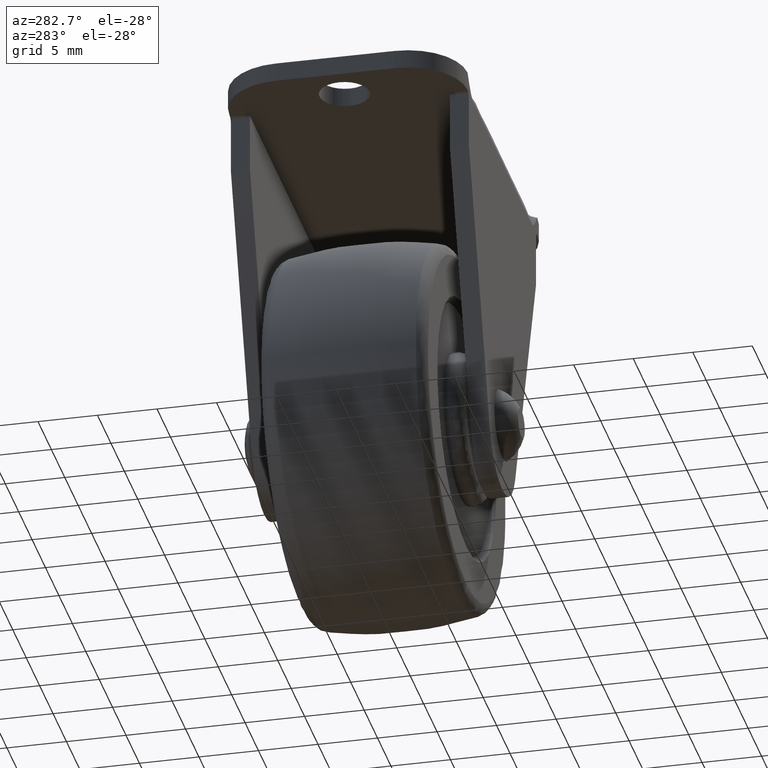
[diagram: clean part render]
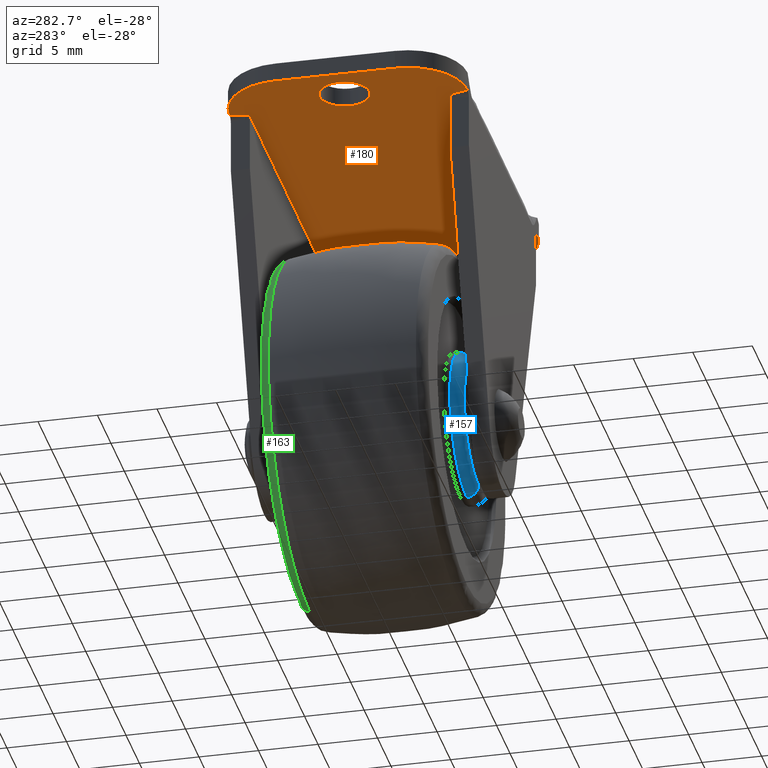
[diagram: same view with three faces highlighted in distinct colors, each labeled with its STEP entity id]
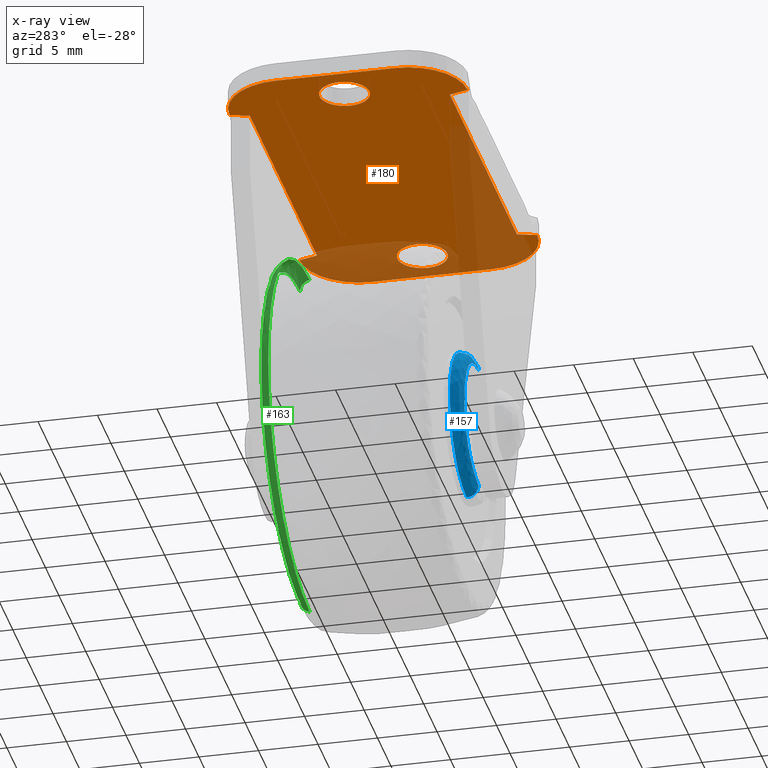
[diagram: x-ray of the same camera — body ghosted, the three highlighted faces saturated]
A machine part, auxiliary view with three faces highlighted in distinct colors.
The next image is the same camera in x-ray (body ghosted, the three faces saturated) — at least one of them is partly hidden behind the body in this view.
Their STEP definitions:

[orange] entity #180 — the highlighted planar face has unit normal (0, 0, -1).
#180=ADVANCED_FACE('',(#552,#553,#554),#551,.T.);
#551=PLANE('',#1491);
#552=FACE_OUTER_BOUND('',#1492,.T.);
#553=FACE_BOUND('',#1493,.T.);
#554=FACE_BOUND('',#1494,.T.);
#1488=CARTESIAN_POINT('',(-2.16000000000E+01,1.20000005665E+01,2.44000010000E+01));
#1489=DIRECTION('',(0.00000000000E+00,0.00000000000E+00,-1.00000000000E+00));
#1490=DIRECTION('',(1.00000000000E+00,0.00000000000E+00,0.00000000000E+00));
#1491=AXIS2_PLACEMENT_3D('',#1488,#1489,#1490);
#1492=EDGE_LOOP('',(#2107,#2108,#2109,#2110,#2111,#2112,#2113,#2114,#2115,#2116,#2117,#2118));
#1493=EDGE_LOOP('',(#2119,#2120));
#1494=EDGE_LOOP('',(#2121,#2122));
#2107=ORIENTED_EDGE('',*,*,#2436,.T.);
#2108=ORIENTED_EDGE('',*,*,#2437,.T.);
#2109=ORIENTED_EDGE('',*,*,#2438,.F.);
#2110=ORIENTED_EDGE('',*,*,#2439,.F.);
#2111=ORIENTED_EDGE('',*,*,#2440,.F.);
#2112=ORIENTED_EDGE('',*,*,#2441,.T.);
#2113=ORIENTED_EDGE('',*,*,#2442,.T.);
#2114=ORIENTED_EDGE('',*,*,#2443,.T.);
#2115=ORIENTED_EDGE('',*,*,#2444,.F.);
#2116=ORIENTED_EDGE('',*,*,#2434,.F.);
#2117=ORIENTED_EDGE('',*,*,#2431,.F.);
#2118=ORIENTED_EDGE('',*,*,#2445,.T.);
#2119=ORIENTED_EDGE('',*,*,#2446,.T.);
#2120=ORIENTED_EDGE('',*,*,#2447,.T.);
#2121=ORIENTED_EDGE('',*,*,#2448,.T.);
#2122=ORIENTED_EDGE('',*,*,#2449,.T.);
#2431=EDGE_CURVE('',#2979,#2986,#2987,.T.);
#2434=EDGE_CURVE('',#2986,#3006,#3007,.T.);
#2436=EDGE_CURVE('',#3019,#3020,#3021,.T.);
#2437=EDGE_CURVE('',#3020,#3027,#3028,.T.);
#2438=EDGE_CURVE('',#3034,#3027,#3035,.T.);
#2439=EDGE_CURVE('',#3041,#3034,#3042,.T.);
#2440=EDGE_CURVE('',#3048,#3041,#3049,.T.);
#2441=EDGE_CURVE('',#3048,#3055,#3056,.T.);
#2442=EDGE_CURVE('',#3055,#3062,#3063,.T.);
#2443=EDGE_CURVE('',#3062,#3069,#3070,.T.);
#2444=EDGE_CURVE('',#3006,#3069,#3076,.T.);
#2445=EDGE_CURVE('',#2979,#3019,#3082,.T.);
#2446=EDGE_CURVE('',#3088,#3089,#3090,.T.);
#2447=EDGE_CURVE('',#3089,#3088,#3096,.T.);
#2448=EDGE_CURVE('',#3102,#3103,#3104,.T.);
#2449=EDGE_CURVE('',#3103,#3102,#3110,.T.);
#2979=VERTEX_POINT('',#4091);
#2986=VERTEX_POINT('',#4095);
#2987=CIRCLE('',#4099,5.00000000000E+00);
#3006=VERTEX_POINT('',#4107);
#3007=LINE('',#4108,#4109);
#3019=VERTEX_POINT('',#4114);
#3020=VERTEX_POINT('',#4115);
#3021=LINE('',#4116,#4117);
#3027=VERTEX_POINT('',#4119);
#3028=LINE('',#4120,#4121);
#3034=VERTEX_POINT('',#4123);
#3035=CIRCLE('',#4127,5.00000000000E+00);
#3041=VERTEX_POINT('',#4128);
#3042=LINE('',#4129,#4130);
#3048=VERTEX_POINT('',#4132);
#3049=CIRCLE('',#4136,5.00000000000E+00);
#3055=VERTEX_POINT('',#4137);
#3056=LINE('',#4138,#4139);
#3062=VERTEX_POINT('',#4141);
#3063=LINE('',#4142,#4143);
#3069=VERTEX_POINT('',#4145);
#3070=LINE('',#4146,#4147);
#3076=CIRCLE('',#4152,5.00000000000E+00);
#3082=LINE('',#4153,#4154);
#3088=VERTEX_POINT('',#4156);
#3089=VERTEX_POINT('',#4157);
#3090=CIRCLE('',#4161,2.10000000000E+00);
#3096=CIRCLE('',#4165,2.10000000000E+00);
#3102=VERTEX_POINT('',#4166);
#3103=VERTEX_POINT('',#4167);
#3104=CIRCLE('',#4171,2.10000000000E+00);
#3110=CIRCLE('',#4175,2.10000000000E+00);
#4091=CARTESIAN_POINT('',(-1.30000000000E+01,1.00000000000E+01,2.44000010000E+01));
#4095=CARTESIAN_POINT('',(-1.80000000000E+01,5.00000000000E+00,2.44000010000E+01));
#4096=CARTESIAN_POINT('',(-1.30000000000E+01,5.00000000000E+00,2.44000010000E+01));
#4097=DIRECTION('',(0.00000000000E+00,-0.00000000000E+00,1.00000000000E+00));
#4098=DIRECTION('',(1.00000000000E+00,-0.00000000000E+00,-0.00000000000E+00));
#4099=AXIS2_PLACEMENT_3D('',#4096,#4097,#4098);
#4107=CARTESIAN_POINT('',(-1.80000000000E+01,-5.00000000000E+00,2.44000010000E+01));
#4108=CARTESIAN_POINT('',(-1.80000000000E+01,5.00000000000E+00,2.44000010000E+01));
#4109=VECTOR('',#4110,1.00000000000E+01);
#4110=DIRECTION('',(0.00000000000E+00,-1.00000000000E+00,0.00000000000E+00));
#4114=CARTESIAN_POINT('',(-1.25000000000E+01,8.40000000000E+00,2.44000010000E+01));
#4115=CARTESIAN_POINT('',(1.25000000000E+01,8.40000000000E+00,2.44000010000E+01));
#4116=CARTESIAN_POINT('',(-1.25000000000E+01,8.40000000000E+00,2.44000010000E+01));
#4117=VECTOR('',#4118,2.50000000000E+01);
#4118=DIRECTION('',(1.00000000000E+00,0.00000000000E+00,0.00000000000E+00));
#4119=CARTESIAN_POINT('',(1.30000015708E+01,1.00000000000E+01,2.44000010000E+01));
#4120=CARTESIAN_POINT('',(1.25000000000E+01,8.40000000000E+00,2.44000010000E+01));
#4121=VECTOR('',#4122,1.67630592995E+00);
#4122=DIRECTION('',(2.98274993136E-01,9.54479978035E-01,0.00000000000E+00));
#4123=CARTESIAN_POINT('',(1.80000000000E+01,5.00000000000E+00,2.44000010000E+01));
#4124=CARTESIAN_POINT('',(1.30000000000E+01,5.00000000000E+00,2.44000010000E+01));
#4125=DIRECTION('',(0.00000000000E+00,-0.00000000000E+00,1.00000000000E+00));
#4126=DIRECTION('',(1.00000000000E+00,-0.00000000000E+00,-0.00000000000E+00));
#4127=AXIS2_PLACEMENT_3D('',#4124,#4125,#4126);
#4128=CARTESIAN_POINT('',(1.80000000000E+01,-5.00000436332E+00,2.44000010000E+01));
#4129=CARTESIAN_POINT('',(1.80000000000E+01,-5.00000436332E+00,2.44000010000E+01));
#4130=VECTOR('',#4131,1.00000043633E+01);
#4131=DIRECTION('',(0.00000000000E+00,1.00000000000E+00,0.00000000000E+00));
#4132=CARTESIAN_POINT('',(1.30000000000E+01,-1.00000000000E+01,2.44000010000E+01));
#4133=CARTESIAN_POINT('',(1.30000000000E+01,-5.00000000000E+00,2.44000010000E+01));
#4134=DIRECTION('',(0.00000000000E+00,-0.00000000000E+00,1.00000000000E+00));
#4135=DIRECTION('',(1.00000000000E+00,-0.00000000000E+00,-0.00000000000E+00));
#4136=AXIS2_PLACEMENT_3D('',#4133,#4134,#4135);
#4137=CARTESIAN_POINT('',(1.25000000000E+01,-8.40000000000E+00,2.44000010000E+01));
#4138=CARTESIAN_POINT('',(1.30000000000E+01,-1.00000000000E+01,2.44000010000E+01));
#4139=VECTOR('',#4140,1.67630546142E+00);
#4140=DIRECTION('',(-2.98274993136E-01,9.54479978035E-01,0.00000000000E+00));
#4141=CARTESIAN_POINT('',(-1.25000000000E+01,-8.40000000000E+00,2.44000010000E+01));
#4142=CARTESIAN_POINT('',(1.25000000000E+01,-8.40000000000E+00,2.44000010000E+01));
#4143=VECTOR('',#4144,2.50000000000E+01);
#4144=DIRECTION('',(-1.00000000000E+00,0.00000000000E+00,0.00000000000E+00));
#4145=CARTESIAN_POINT('',(-1.30000026180E+01,-1.00000000000E+01,2.44000010000E+01));
#4146=CARTESIAN_POINT('',(-1.25000000000E+01,-8.40000000000E+00,2.44000010000E+01));
#4147=VECTOR('',#4148,1.67630624231E+00);
#4148=DIRECTION('',(-2.98274993136E-01,-9.54479978035E-01,0.00000000000E+00));
#4149=CARTESIAN_POINT('',(-1.30000000000E+01,-5.00000000000E+00,2.44000010000E+01));
#4150=DIRECTION('',(0.00000000000E+00,-0.00000000000E+00,1.00000000000E+00));
#4151=DIRECTION('',(1.00000000000E+00,-0.00000000000E+00,-0.00000000000E+00));
#4152=AXIS2_PLACEMENT_3D('',#4149,#4150,#4151);
#4153=CARTESIAN_POINT('',(-1.30000000000E+01,1.00000000000E+01,2.44000010000E+01));
#4154=VECTOR('',#4155,1.67630546142E+00);
#4155=DIRECTION('',(2.98274993136E-01,-9.54479978035E-01,0.00000000000E+00));
#4156=CARTESIAN_POINT('',(-1.66000000000E+01,0.00000000000E+00,2.44000010000E+01));
#4157=CARTESIAN_POINT('',(-1.24000000000E+01,5.18104078158E-16,2.44000010000E+01));
#4158=CARTESIAN_POINT('',(-1.45000000000E+01,0.00000000000E+00,2.44000010000E+01));
#4159=DIRECTION('',(0.00000000000E+00,0.00000000000E+00,1.00000000000E+00));
#4160=DIRECTION('',(-1.00000000000E+00,-1.22460635382E-16,0.00000000000E+00));
#4161=AXIS2_PLACEMENT_3D('',#4158,#4159,#4160);
#4162=CARTESIAN_POINT('',(-1.45000000000E+01,0.00000000000E+00,2.44000010000E+01));
#4163=DIRECTION('',(0.00000000000E+00,0.00000000000E+00,1.00000000000E+00));
#4164=DIRECTION('',(-1.00000000000E+00,-1.22460635382E-16,0.00000000000E+00));
#4165=AXIS2_PLACEMENT_3D('',#4162,#4163,#4164);
#4166=CARTESIAN_POINT('',(1.24000000000E+01,0.00000000000E+00,2.44000010000E+01));
#4167=CARTESIAN_POINT('',(1.66000000000E+01,5.18104078158E-16,2.44000010000E+01));
#4168=CARTESIAN_POINT('',(1.45000000000E+01,0.00000000000E+00,2.44000010000E+01));
#4169=DIRECTION('',(0.00000000000E+00,0.00000000000E+00,1.00000000000E+00));
#4170=DIRECTION('',(-1.00000000000E+00,-1.22460635382E-16,0.00000000000E+00));
#4171=AXIS2_PLACEMENT_3D('',#4168,#4169,#4170);
#4172=CARTESIAN_POINT('',(1.45000000000E+01,0.00000000000E+00,2.44000010000E+01));
#4173=DIRECTION('',(0.00000000000E+00,0.00000000000E+00,1.00000000000E+00));
#4174=DIRECTION('',(-1.00000000000E+00,-1.22460635382E-16,0.00000000000E+00));
#4175=AXIS2_PLACEMENT_3D('',#4172,#4173,#4174);

[blue] entity #157 — the highlighted face is a freeform B-spline surface patch.
#157=ADVANCED_FACE('',(#322),#321,.T.);
#321=( BOUNDED_SURFACE() B_SPLINE_SURFACE( 2,2,((#1159,#1160,#1161,#1162,#1163),(#1164,#1165,#1166,#1167,#1168),(#1169,#1170,#1171,#1172,#1173),(#1174,#1175,#1176,#1177,#1178),(#1179,#1180,#1181,#1182,#1183)), .UNSPECIFIED.,.F.,.F.,.F.) B_SPLINE_SURFACE_WITH_KNOTS((3,2,3),(3,2,3),(0.00000000000E+00,5.00000000000E-01,1.00000000000E+00),(0.00000000000E+00,5.00000000000E-01,1.00000000000E+00), .UNSPECIFIED. ) GEOMETRIC_REPRESENTATION_ITEM() RATIONAL_B_SPLINE_SURFACE(((1.00000000000E+00,7.07106781187E-01,1.00000000000E+00,7.07106781187E-01,1.00000000000E+00),(7.07106781187E-01,5.00000000000E-01,7.07106781187E-01,5.00000000000E-01,7.07106781187E-01),(1.00000000000E+00,7.07106781187E-01,1.00000000000E+00,7.07106781187E-01,1.00000000000E+00),(7.07106781187E-01,5.00000000000E-01,7.07106781187E-01,5.00000000000E-01,7.07106781187E-01),(1.00000000000E+00,7.07106781187E-01,1.00000000000E+00,7.07106781187E-01,1.00000000000E+00))) REPRESENTATION_ITEM('') SURFACE() );
#322=FACE_OUTER_BOUND('',#1184,.T.);
#1159=CARTESIAN_POINT('',(-7.76118279019E-16,-7.00000000000E+00,6.33769600000E+00));
#1160=CARTESIAN_POINT('',(-7.76118279019E-16,-8.00000000000E+00,6.33769600000E+00));
#1161=CARTESIAN_POINT('',(-6.53657643637E-16,-8.00000000000E+00,5.33769600000E+00));
#1162=CARTESIAN_POINT('',(-5.31197008255E-16,-8.00000000000E+00,4.33769600000E+00));
#1163=CARTESIAN_POINT('',(-5.31197008255E-16,-7.00000000000E+00,4.33769600000E+00));
#1164=CARTESIAN_POINT('',(-6.33769600000E+00,-7.00000000000E+00,6.33769600000E+00));
#1165=CARTESIAN_POINT('',(-6.33769600000E+00,-8.00000000000E+00,6.33769600000E+00));
#1166=CARTESIAN_POINT('',(-5.33769600000E+00,-8.00000000000E+00,5.33769600000E+00));
#1167=CARTESIAN_POINT('',(-4.33769600000E+00,-8.00000000000E+00,4.33769600000E+00));
#1168=CARTESIAN_POINT('',(-4.33769600000E+00,-7.00000000000E+00,4.33769600000E+00));
#1169=CARTESIAN_POINT('',(-6.33769600000E+00,-7.00000000000E+00,4.79315414987E-16));
#1170=CARTESIAN_POINT('',(-6.33769600000E+00,-8.00000000000E+00,4.79315414987E-16));
#1171=CARTESIAN_POINT('',(-5.33769600000E+00,-8.00000000000E+00,5.40543710412E-16));
#1172=CARTESIAN_POINT('',(-4.33769600000E+00,-8.00000000000E+00,6.01772005837E-16));
#1173=CARTESIAN_POINT('',(-4.33769600000E+00,-7.00000000000E+00,6.01772005837E-16));
#1174=CARTESIAN_POINT('',(-6.33769600000E+00,-7.00000000000E+00,-6.33769600000E+00));
#1175=CARTESIAN_POINT('',(-6.33769600000E+00,-8.00000000000E+00,-6.33769600000E+00));
#1176=CARTESIAN_POINT('',(-5.33769600000E+00,-8.00000000000E+00,-5.33769600000E+00));
#1177=CARTESIAN_POINT('',(-4.33769600000E+00,-8.00000000000E+00,-4.33769600000E+00));
#1178=CARTESIAN_POINT('',(-4.33769600000E+00,-7.00000000000E+00,-4.33769600000E+00));
#1179=CARTESIAN_POINT('',(-2.56330174319E-20,-7.00000000000E+00,-6.33769600000E+00));
#1180=CARTESIAN_POINT('',(-2.56330174318E-20,-8.00000000000E+00,-6.33769600000E+00));
#1181=CARTESIAN_POINT('',(-2.15884849343E-20,-8.00000000000E+00,-5.33769600000E+00));
#1182=CARTESIAN_POINT('',(-1.75439524367E-20,-8.00000000000E+00,-4.33769600000E+00));
#1183=CARTESIAN_POINT('',(-1.75439524367E-20,-7.00000000000E+00,-4.33769600000E+00));
#1184=EDGE_LOOP('',(#2015,#2016,#2017,#2018));
#2015=ORIENTED_EDGE('',*,*,#2368,.F.);
#2016=ORIENTED_EDGE('',*,*,#2393,.F.);
#2017=ORIENTED_EDGE('',*,*,#2394,.T.);
#2018=ORIENTED_EDGE('',*,*,#2395,.T.);
#2368=EDGE_CURVE('',#2560,#2559,#2567,.T.);
#2393=EDGE_CURVE('',#2739,#2560,#2740,.T.);
#2394=EDGE_CURVE('',#2739,#2746,#2747,.T.);
#2395=EDGE_CURVE('',#2746,#2559,#2753,.T.);
#2559=VERTEX_POINT('',#3831);
#2560=VERTEX_POINT('',#3832);
#2567=CIRCLE('',#3840,5.33769600000E+00);
#2739=VERTEX_POINT('',#3955);
#2740=(BOUNDED_CURVE() B_SPLINE_CURVE(2,(#3956,#3957,#3958),.UNSPECIFIED.,.F.,.F.) B_SPLINE_CURVE_WITH_KNOTS((3,3),(0.00000000000E+00,5.00000000000E-01),.UNSPECIFIED.) CURVE() GEOMETRIC_REPRESENTATION_ITEM() RATIONAL_B_SPLINE_CURVE((1.00000000000E+00,7.07106781187E-01,1.00000000000E+00)) REPRESENTATION_ITEM('') );
#2746=VERTEX_POINT('',#3959);
#2747=CIRCLE('',#3963,6.33769600000E+00);
#2753=(BOUNDED_CURVE() B_SPLINE_CURVE(3,(#3964,#3965,#3966,#3967,#3968),.UNSPECIFIED.,.F.,.F.) B_SPLINE_CURVE_WITH_KNOTS((4,1,4),(0.00000000000E+00,2.50000003185E-01,5.00000005531E-01),.UNSPECIFIED.) CURVE() GEOMETRIC_REPRESENTATION_ITEM() RATIONAL_B_SPLINE_CURVE((1.00000000000E+00,1.00000000000E+00,1.00000000000E+00,1.00000000000E+00,1.00000000000E+00)) REPRESENTATION_ITEM('') );
#3831=CARTESIAN_POINT('',(0.00000000000E+00,-8.00000000000E+00,-5.33769600000E+00));
#3832=CARTESIAN_POINT('',(2.96059473233E-16,-8.00000000000E+00,5.33769600000E+00));
#3837=CARTESIAN_POINT('',(0.00000000000E+00,-8.00000000000E+00,8.17347958358E-16));
#3838=DIRECTION('',(0.00000000000E+00,-1.00000000000E+00,-0.00000000000E+00));
#3839=DIRECTION('',(-1.22460635382E-16,0.00000000000E+00,-1.00000000000E+00));
#3840=AXIS2_PLACEMENT_3D('',#3837,#3838,#3839);
#3955=CARTESIAN_POINT('',(0.00000000000E+00,-7.00000000000E+00,6.33769600000E+00));
#3956=CARTESIAN_POINT('',(-7.76118279019E-16,-7.00000000000E+00,6.33769600000E+00));
#3957=CARTESIAN_POINT('',(-7.76118279019E-16,-8.00000000000E+00,6.33769600000E+00));
#3958=CARTESIAN_POINT('',(-6.53657643637E-16,-8.00000000000E+00,5.33769600000E+00));
#3959=CARTESIAN_POINT('',(0.00000000000E+00,-7.00000000000E+00,-6.33769600000E+00));
#3960=CARTESIAN_POINT('',(0.00000000000E+00,-7.00000000000E+00,8.17347958358E-16));
#3961=DIRECTION('',(0.00000000000E+00,-1.00000000000E+00,-0.00000000000E+00));
#3962=DIRECTION('',(-1.22460635382E-16,0.00000000000E+00,-1.00000000000E+00));
#3963=AXIS2_PLACEMENT_3D('',#3960,#3961,#3962);
#3964=CARTESIAN_POINT('',(5.92118946467E-16,-7.00000000000E+00,-6.33769600000E+00));
#3965=CARTESIAN_POINT('',(7.11078623918E-16,-7.25945044272E+00,-6.33992005936E+00));
#3966=CARTESIAN_POINT('',(8.49769997454E-16,-7.78337632104E+00,-6.12107230789E+00));
#3967=CARTESIAN_POINT('',(7.11078615894E-16,-8.00222406338E+00,-5.59714642617E+00));
#3968=CARTESIAN_POINT('',(5.92118943753E-16,-8.00000000000E+00,-5.33769598435E+00));

[green] entity #163 — the highlighted face is a freeform B-spline surface patch.
#163=ADVANCED_FACE('',(#382),#381,.T.);
#381=( BOUNDED_SURFACE() B_SPLINE_SURFACE( 2,2,((#1285,#1286,#1287,#1288,#1289),(#1290,#1291,#1292,#1293,#1294),(#1295,#1296,#1297,#1298,#1299),(#1300,#1301,#1302,#1303,#1304),(#1305,#1306,#1307,#1308,#1309)), .UNSPECIFIED.,.F.,.F.,.F.) B_SPLINE_SURFACE_WITH_KNOTS((3,2,3),(3,2,3),(0.00000000000E+00,5.00000000000E-01,1.00000000000E+00),(0.00000000000E+00,5.00000000000E-01,1.00000000000E+00), .UNSPECIFIED. ) GEOMETRIC_REPRESENTATION_ITEM() RATIONAL_B_SPLINE_SURFACE(((1.00000000000E+00,7.72511442159E-01,1.00000000000E+00,7.72511442159E-01,1.00000000000E+00),(7.07106781187E-01,5.46248079295E-01,7.07106781187E-01,5.46248079295E-01,7.07106781187E-01),(1.00000000000E+00,7.72511442159E-01,1.00000000000E+00,7.72511442159E-01,1.00000000000E+00),(7.07106781187E-01,5.46248079295E-01,7.07106781187E-01,5.46248079295E-01,7.07106781187E-01),(1.00000000000E+00,7.72511442159E-01,1.00000000000E+00,7.72511442159E-01,1.00000000000E+00))) REPRESENTATION_ITEM('') SURFACE() );
#382=FACE_OUTER_BOUND('',#1310,.T.);
#1285=CARTESIAN_POINT('',(-1.64497981296E-15,6.19354845713E+00,1.34327231590E+01));
#1286=CARTESIAN_POINT('',(-1.66446272782E-15,7.00000000000E+00,1.35918184862E+01));
#1287=CARTESIAN_POINT('',(-1.76512473055E-15,7.00000000000E+00,1.44138132637E+01));
#1288=CARTESIAN_POINT('',(-1.86578673328E-15,7.00000000000E+00,1.52358080411E+01));
#1289=CARTESIAN_POINT('',(-1.88526964814E-15,6.19354845713E+00,1.53949033684E+01));
#1290=CARTESIAN_POINT('',(-1.34327231590E+01,6.19354845713E+00,1.34327231590E+01));
#1291=CARTESIAN_POINT('',(-1.35918184862E+01,7.00000000000E+00,1.35918184862E+01));
#1292=CARTESIAN_POINT('',(-1.44138132637E+01,7.00000000000E+00,1.44138132637E+01));
#1293=CARTESIAN_POINT('',(-1.52358080411E+01,7.00000000000E+00,1.52358080411E+01));
#1294=CARTESIAN_POINT('',(-1.53949033684E+01,6.19354845713E+00,1.53949033684E+01));
#1295=CARTESIAN_POINT('',(-1.34327231590E+01,6.19354845713E+00,-8.22462741937E-16));
#1296=CARTESIAN_POINT('',(-1.35918184862E+01,7.00000000000E+00,-8.32203877635E-16));
#1297=CARTESIAN_POINT('',(-1.44138132637E+01,7.00000000000E+00,-8.82533216707E-16));
#1298=CARTESIAN_POINT('',(-1.52358080411E+01,7.00000000000E+00,-9.32862555778E-16));
#1299=CARTESIAN_POINT('',(-1.53949033684E+01,6.19354845713E+00,-9.42603691476E-16));
#1300=CARTESIAN_POINT('',(-1.34327231590E+01,6.19354845713E+00,-1.34327231590E+01));
#1301=CARTESIAN_POINT('',(-1.35918184862E+01,7.00000000000E+00,-1.35918184862E+01));
#1302=CARTESIAN_POINT('',(-1.44138132637E+01,7.00000000000E+00,-1.44138132637E+01));
#1303=CARTESIAN_POINT('',(-1.52358080411E+01,7.00000000000E+00,-1.52358080411E+01));
#1304=CARTESIAN_POINT('',(-1.53949033684E+01,6.19354845713E+00,-1.53949033684E+01));
#1305=CARTESIAN_POINT('',(-5.43290853478E-20,6.19354845713E+00,-1.34327231590E+01));
#1306=CARTESIAN_POINT('',(-5.49725515691E-20,7.00000000000E+00,-1.35918184862E+01));
#1307=CARTESIAN_POINT('',(-5.82971361594E-20,7.00000000000E+00,-1.44138132637E+01));
#1308=CARTESIAN_POINT('',(-6.16217207496E-20,7.00000000000E+00,-1.52358080411E+01));
#1309=CARTESIAN_POINT('',(-6.22651869709E-20,6.19354845713E+00,-1.53949033684E+01));
#1310=EDGE_LOOP('',(#2039,#2040,#2041,#2042));
#2039=ORIENTED_EDGE('',*,*,#2403,.F.);
#2040=ORIENTED_EDGE('',*,*,#2404,.F.);
#2041=ORIENTED_EDGE('',*,*,#2379,.T.);
#2042=ORIENTED_EDGE('',*,*,#2405,.T.);
#2379=EDGE_CURVE('',#2643,#2644,#2645,.T.);
#2403=EDGE_CURVE('',#2803,#2804,#2805,.T.);
#2404=EDGE_CURVE('',#2643,#2803,#2811,.T.);
#2405=EDGE_CURVE('',#2644,#2804,#2817,.T.);
#2643=VERTEX_POINT('',#3891);
#2644=VERTEX_POINT('',#3892);
#2645=CIRCLE('',#3896,1.44138130000E+01);
#2803=VERTEX_POINT('',#3995);
#2804=VERTEX_POINT('',#3996);
#2805=CIRCLE('',#4000,1.53949033684E+01);
#2811=(BOUNDED_CURVE() B_SPLINE_CURVE(2,(#4001,#4002,#4003),.UNSPECIFIED.,.F.,.F.) B_SPLINE_CURVE_WITH_KNOTS((3,3),(4.99999890724E-01,1.00000000000E+00),.UNSPECIFIED.) CURVE() GEOMETRIC_REPRESENTATION_ITEM() RATIONAL_B_SPLINE_CURVE((1.00000000000E+00,7.72511442159E-01,1.00000000000E+00)) REPRESENTATION_ITEM('') );
#2817=(BOUNDED_CURVE() B_SPLINE_CURVE(3,(#4004,#4005,#4006,#4007),.UNSPECIFIED.,.F.,.F.) B_SPLINE_CURVE_WITH_KNOTS((4,4),(4.99999895804E-01,1.00000000000E+00),.UNSPECIFIED.) CURVE() GEOMETRIC_REPRESENTATION_ITEM() RATIONAL_B_SPLINE_CURVE((1.00000000000E+00,1.00000000000E+00,1.00000000000E+00,1.00000000000E+00)) REPRESENTATION_ITEM('') );
#3891=CARTESIAN_POINT('',(5.92118946467E-16,7.00000000000E+00,1.44138130000E+01));
#3892=CARTESIAN_POINT('',(0.00000000000E+00,7.00000000000E+00,-1.44138130000E+01));
#3893=CARTESIAN_POINT('',(0.00000000000E+00,7.00000000000E+00,8.17347958358E-16));
#3894=DIRECTION('',(0.00000000000E+00,-1.00000000000E+00,-0.00000000000E+00));
#3895=DIRECTION('',(-1.22460635382E-16,0.00000000000E+00,-1.00000000000E+00));
#3896=AXIS2_PLACEMENT_3D('',#3893,#3894,#3895);
#3995=CARTESIAN_POINT('',(1.77635683940E-15,6.19354845713E+00,1.53949033684E+01));
#3996=CARTESIAN_POINT('',(0.00000000000E+00,6.19354845713E+00,-1.53949033684E+01));
#3997=CARTESIAN_POINT('',(0.00000000000E+00,6.19354845713E+00,8.17347958358E-16));
#3998=DIRECTION('',(0.00000000000E+00,-1.00000000000E+00,-0.00000000000E+00));
#3999=DIRECTION('',(-1.22460635382E-16,0.00000000000E+00,-1.00000000000E+00));
#4000=AXIS2_PLACEMENT_3D('',#3997,#3998,#3999);
#4001=CARTESIAN_POINT('',(-1.76512473055E-15,7.00000000000E+00,1.44138132637E+01));
#4002=CARTESIAN_POINT('',(-1.86578673328E-15,7.00000000000E+00,1.52358080411E+01));
#4003=CARTESIAN_POINT('',(-1.88526964814E-15,6.19354845713E+00,1.53949033684E+01));
#4004=CARTESIAN_POINT('',(1.18423800522E-15,7.00000000000E+00,-1.44138129990E+01));
#4005=CARTESIAN_POINT('',(1.88295980466E-15,6.96549944340E+00,-1.49334502518E+01));
#4006=CARTESIAN_POINT('',(2.27770573154E-15,6.69668226245E+00,-1.52604803749E+01));
#4007=CARTESIAN_POINT('',(2.36847578587E-15,6.19354845713E+00,-1.53949033684E+01));